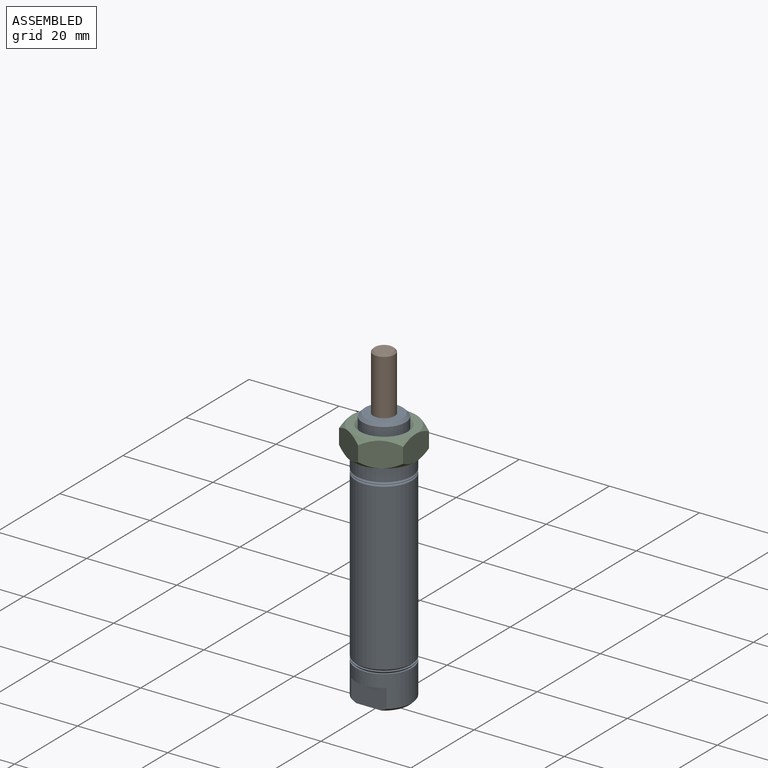
[diagram: assembled view]
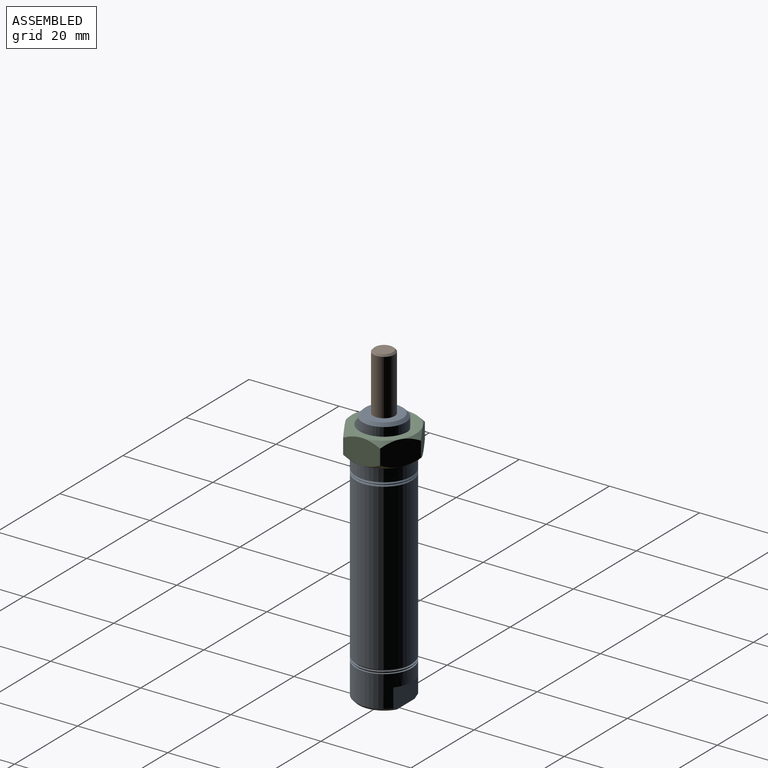
[diagram: assembled view, second angle]
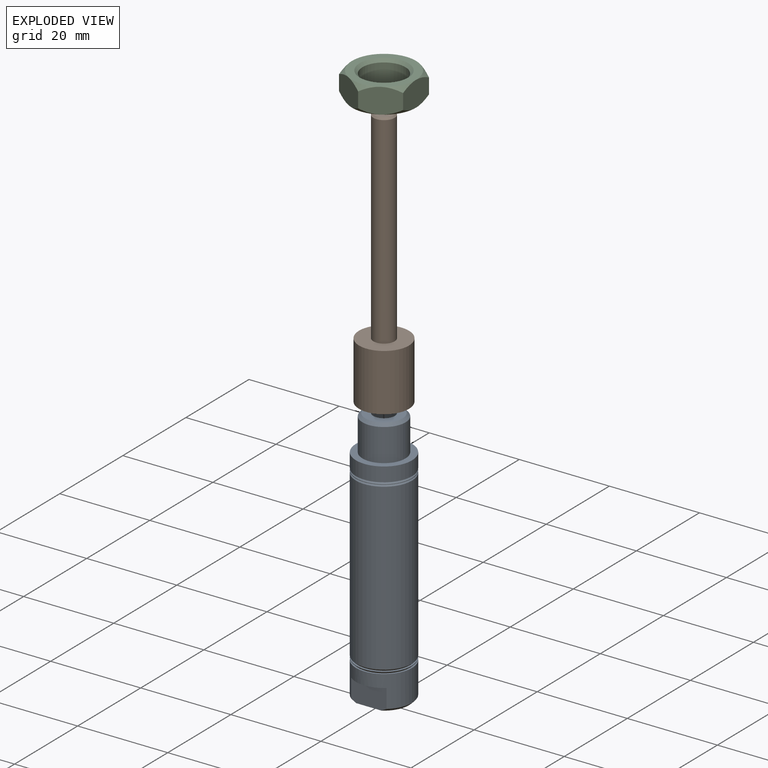
[diagram: exploded view]
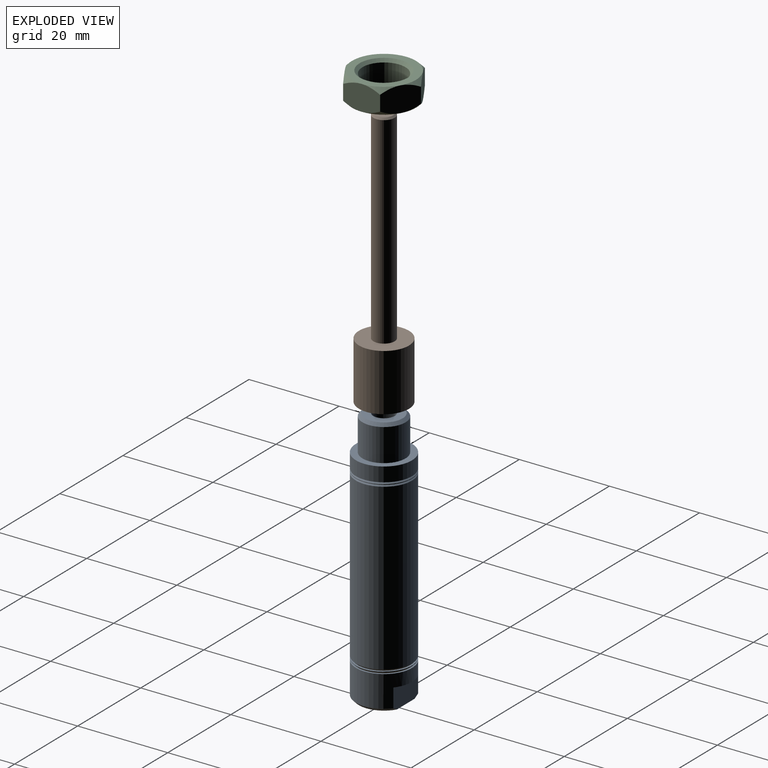
[diagram: exploded view, second angle]
ASSEMBLY  parts=3 mates=2
PART A: 36 faces, bbox 57.2x12.4x12.4 mm
  f0: cylinder r=2.41mm len=9.65mm, axis (1,0,0), area 146.3mm2, adj f16,f30,f31,f32,f33
  f1: cylinder r=2.02mm len=4.04mm, axis (1,0,0), area 29mm2, adj f22,f30
  f2: cone r=4.14mm half-angle=45deg, axis (1,0,0), area 25.2mm2, adj f9,f19
  f3: cone r=6.22mm half-angle=45deg, axis (-1,0,0), area 20.4mm2, adj f13,f25
  f4: cone r=6.22mm half-angle=45deg, axis (-1,0,0), area 20.4mm2, adj f12,f24
  f5: cylinder r=2.37mm len=19.81mm, axis (1,0,0), area 295.6mm2, adj f19,f23
  f6: cylinder r=5.56mm len=25.4mm, axis (1,0,0), area 886.7mm2, adj f22,f23
  f7: cone r=5.84mm half-angle=45deg, axis (1,0,0), area 20.4mm2, adj f12,f21
  f8: cone r=5.84mm half-angle=45deg, axis (1,0,0), area 20.4mm2, adj f11,f20
  f9: cylinder r=4.78mm len=9.55mm, axis (-1,0,0), area 217.2mm2, adj f2,f18
  f10: cylinder r=6.22mm len=12.45mm, axis (-1,0,0), area 124.1mm2, adj f18,f20
  f11: cylinder r=6.22mm len=12.45mm, axis (-1,0,0), area 5mm2, adj f8,f21
  f12: cylinder r=6.22mm len=36.7mm, axis (-1,0,0), area 1435.1mm2, adj f4,f7
  f13: cylinder r=6.22mm len=12.45mm, axis (-1,0,0), area 5mm2, adj f3,f24
  f14: cone r=6.22mm half-angle=45deg, axis (-1,0,0), area 10.2mm2, adj f15,f16,f26,f28
  f15: cylinder r=6.22mm len=12.45mm, axis (-1,0,0), area 201.8mm2, adj f14,f17,f25,f26,f27,f28,f29
  f16: plane 11.18x9.65mm, normal (1,0,0), area 77.8mm2, adj f0,f14,f17,f26,f28,f32,f33,f34
  f17: cone r=6.22mm half-angle=45deg, axis (-1,0,0), area 10.2mm2, adj f15,f16,f26,f28
  f18: plane 12.45x12.45mm, normal (-1,0,0), area 50mm2, adj f9,f10
  f19: plane 8.28x8.28mm, normal (-1,0,0), area 36.1mm2, adj f2,f5
  f20: plane 12.45x12.45mm, normal (1,0,0), area 14.4mm2, adj f8,f10
  f21: plane 12.45x12.45mm, normal (1,0,0), area 14.4mm2, adj f7,f11
  f22: plane 11.11x11.11mm, normal (-1,0,0), area 84.2mm2, adj f1,f6
  f23: plane 11.11x11.11mm, normal (1,0,0), area 79.3mm2, adj f5,f6
  f24: plane 12.45x12.45mm, normal (-1,0,0), area 14.4mm2, adj f4,f13
  f25: plane 12.45x12.45mm, normal (-1,0,0), area 14.4mm2, adj f3,f15
  f26: plane 7.86x4.83mm, normal (0,1,0), area 37.2mm2, adj f14,f15,f16,f17,f27
  f27: plane 7.86x1.4mm, normal (1,0,0), area 7.5mm2, adj f15,f26
  f28: plane 7.86x4.83mm, normal (0,-1,0), area 37.2mm2, adj f14,f15,f16,f17,f29
  f29: plane 7.86x1.4mm, normal (1,0,0), area 7.5mm2, adj f15,f28
  f30: plane 4.83x4.83mm, normal (1,0,0), area 5.5mm2, adj f0,f1
  f31: plane 4.83x0.83mm, normal (-1,0,0), area 3.8mm2, adj f0,f32,f33,f34,f35
  f32: plane 4.76x0.03mm, normal (0,-1,0), area 0.2mm2, adj f0,f16,f31
  f33: plane 4.76x0.03mm, normal (0,1,0), area 0.2mm2, adj f0,f16,f31
  f34: cylinder r=0.33mm len=0.66mm, axis (1,0,0), area 0mm2, adj f16,f31,f35
  f35: plane 0.66x0.03mm, normal (0,-1,0), area 0mm2, adj f16,f31,f34
PART B: 6 faces, bbox 57.9x11.1x11.1 mm
  f0: cone r=1.99mm half-angle=45deg, axis (1,0,0), area 7.4mm2, adj f2,f3
  f1: cylinder r=5.56mm len=12.7mm, axis (1,0,0), area 443.4mm2, adj f4,f5
  f2: cylinder r=2.37mm len=44.83mm, axis (1,0,0), area 669mm2, adj f0,f4
  f3: plane 3.99x3.99mm, normal (-1,0,0), area 12.5mm2, adj f0
  f4: plane 11.11x11.11mm, normal (-1,0,0), area 79.3mm2, adj f1,f2
  f5: plane 11.11x11.11mm, normal (1,0,0), area 97mm2, adj f1
PART C: 23 faces, bbox 17.2x17.2x6.4 mm
  f0: cone r=5.4mm half-angle=45deg, axis (0,0,-1), area 28.7mm2, adj f2,f22
  f1: cone r=4.76mm half-angle=45deg, axis (0,0,1), area 28.7mm2, adj f2,f15
  f2: cylinder r=4.76mm len=9.53mm, axis (0,0,1), area 129.2mm2, adj f0,f1
  f3: plane 7.91x6.39mm, normal (-0.5,0.87,0), area 39.7mm2, adj f4,f8,f13,f14,f20,f21
  f4: plane 9.01x6.39mm, normal (-1,0,0), area 39.7mm2, adj f3,f5,f9,f14,f16,f21
  f5: plane 7.91x6.39mm, normal (-0.5,-0.87,0), area 39.7mm2, adj f4,f6,f9,f10,f16,f17
  f6: plane 7.91x6.39mm, normal (0.5,-0.87,0), area 39.7mm2, adj f5,f7,f10,f11,f17,f18
  f7: plane 9.01x6.39mm, normal (1,0,0), area 39.7mm2, adj f6,f8,f11,f12,f18,f19
  f8: plane 7.91x6.39mm, normal (0.5,0.87,0), area 39.7mm2, adj f3,f7,f12,f13,f19,f20
  f9: cone r=7.11mm half-angle=45deg, axis (0,0,-1), area 6.1mm2, adj f4,f5,f15
  f10: cone r=7.11mm half-angle=45deg, axis (0,0,-1), area 6.1mm2, adj f5,f6,f15
  f11: cone r=7.11mm half-angle=45deg, axis (0,0,-1), area 6.1mm2, adj f6,f7,f15
  f12: cone r=7.11mm half-angle=45deg, axis (0,0,-1), area 6.1mm2, adj f7,f8,f15
  f13: cone r=7.11mm half-angle=45deg, axis (0,0,-1), area 6.1mm2, adj f3,f8,f15
  f14: cone r=7.11mm half-angle=45deg, axis (0,0,-1), area 6.1mm2, adj f3,f4,f15
  f15: plane 14.22x14.22mm, normal (0,0,1), area 67.4mm2, adj f1,f9,f10,f11,f12,f13,f14
  f16: cone r=8.21mm half-angle=45deg, axis (0,0,1), area 6.1mm2, adj f4,f5,f22
  f17: cone r=8.21mm half-angle=45deg, axis (0,0,1), area 6.1mm2, adj f5,f6,f22
  f18: cone r=8.21mm half-angle=45deg, axis (0,0,1), area 6.1mm2, adj f6,f7,f22
  f19: cone r=8.21mm half-angle=45deg, axis (0,0,1), area 6.1mm2, adj f7,f8,f22
  f20: cone r=8.21mm half-angle=45deg, axis (0,0,1), area 6.1mm2, adj f3,f8,f22
  f21: cone r=8.21mm half-angle=45deg, axis (0,0,1), area 6.1mm2, adj f3,f4,f22
  f22: plane 14.22x14.22mm, normal (0,0,-1), area 67.4mm2, adj f0,f16,f17,f18,f19,f20,f21
PLACE A rot(axis=(0,1,0),90deg) t=(0,0,0)mm
PLACE B rot(axis=(0,1,0),90deg) t=(0,0,387.26)mm
PLACE C t=(0,0,-5.08)mm
MATE fastened C.f0 <-> A.f0  axis (0,0,-1) through (0,0,-7.87)mm
MATE slider A.f0 <-> B.f0  axis (0,0,1) through (0,0,0)mm
